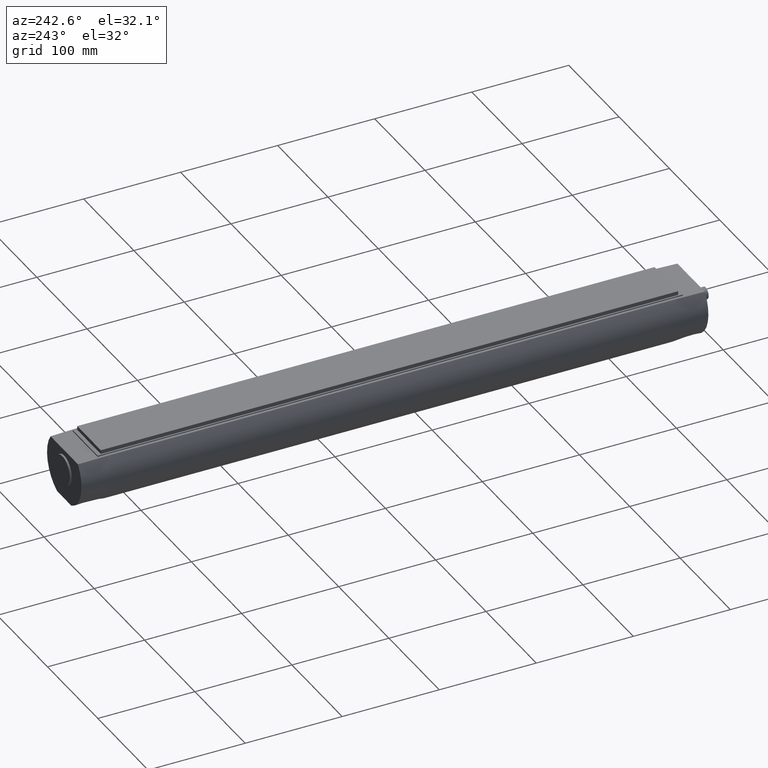
[diagram: clean part render]
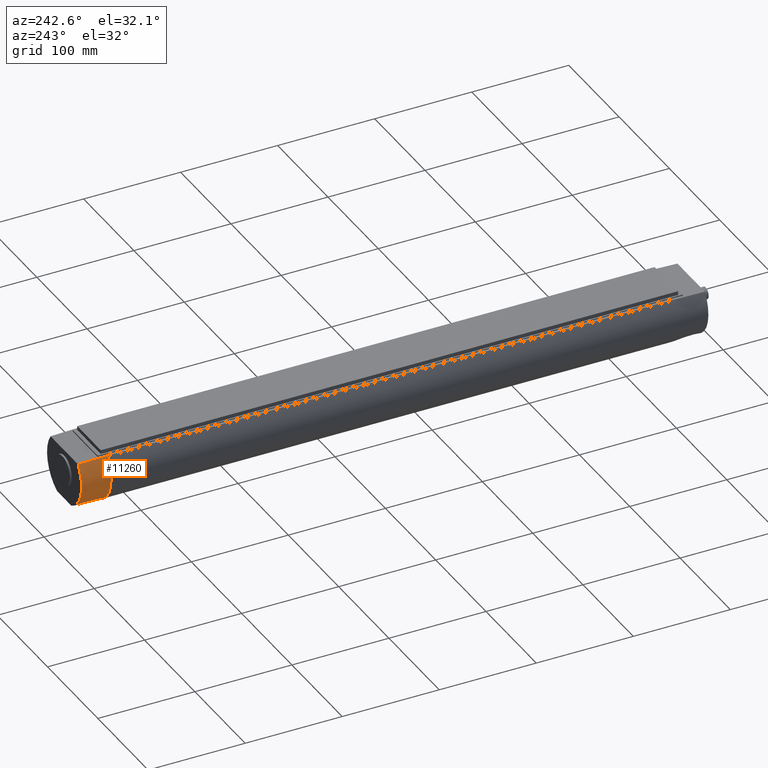
[diagram: same view with one face highlighted and labeled with its STEP entity id]
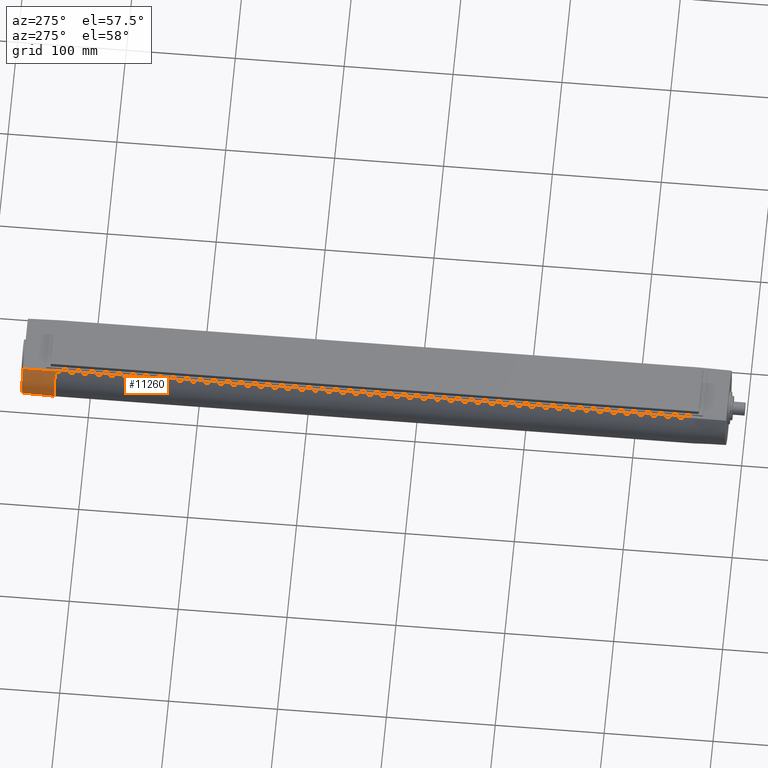
[diagram: same view with one face highlighted and labeled with its STEP entity id]
A machine part, auxiliary view. The second image highlights one B-rep face of the part: STEP entity #11260.
A second angle (auxiliary view) of the same face is appended — the face is thin or edge-on in the first view.
In plain terms, the highlighted conical surface has half-angle 1.4 deg.
Its self-contained STEP definition (entity closure, byte-faithful):
#9130=CARTESIAN_POINT('',(27.6179289592829,21.5,618.));
#9140=VERTEX_POINT('',#9130);
#9170=CARTESIAN_POINT('',(27.2571830238552,20.7668157924422,648.));
#9180=CARTESIAN_POINT('',(27.3782272919301,21.0112102938425,
638.000009593179));
#9190=CARTESIAN_POINT('',(27.4984655468682,21.2556050342733,
628.000009405855));
#9200=CARTESIAN_POINT('',(27.6179289592834,21.5000000000004,
617.999999999985));
#9210=B_SPLINE_CURVE_WITH_KNOTS('',3,(#9170,#9180,#9190,#9200),
.UNSPECIFIED.,.F.,.F.,(4,4),(0.,30.0111262778115),.UNSPECIFIED.);
#9220=CARTESIAN_POINT('',(27.2571830238552,20.7668157924422,648.));
#9230=VERTEX_POINT('',#9220);
#9240=EDGE_CURVE('',#9230,#9140,#9210,.T.);
#9750=CARTESIAN_POINT('',(2.15858374567904E-13,2.43244815377254E-13,
648.000000000002));
#9760=DIRECTION('',(-1.42685690847713E-14,-1.6063521642858E-14,1.));
#9770=DIRECTION('',(0.,-1.,-1.6063521642858E-14));
#9780=AXIS2_PLACEMENT_3D('',#9750,#9760,#9770);
#9790=CIRCLE('',#9780,34.266815792442);
#9800=CARTESIAN_POINT('',(14.0214441037524,-31.2668157924422,648.));
#9810=VERTEX_POINT('',#9800);
#9820=EDGE_CURVE('',#9810,#9230,#9790,.T.);
#10770=CARTESIAN_POINT('',(1.01739562552439E-7,4.55891902007011E-8,
617.999997016549));
#10780=DIRECTION('',(-6.72623952023016E-8,-5.23629372321532E-8,
0.999999999999996));
#10790=DIRECTION('',(0.999999999999998,0.,6.72623952023017E-8));
#10800=AXIS2_PLACEMENT_3D('',#10770,#10780,#10790);
#10810=CIRCLE('',#10800,34.9999998917143);
#10820=CARTESIAN_POINT('',(14.1774466102718,-32.,617.999996294544));
#10830=VERTEX_POINT('',#10820);
#10840=EDGE_CURVE('',#10830,#9140,#10810,.T.);
#11090=CARTESIAN_POINT('',(6.51047654798699E-13,7.33179887366235E-13,
617.500145554522));
#11100=DIRECTION('',(1.42685690847713E-14,1.6063521642858E-14,-1.));
#11110=DIRECTION('',(0.,-1.,-1.6063521642858E-14));
#11120=AXIS2_PLACEMENT_3D('',#11090,#11100,#11110);
#11130=CONICAL_SURFACE('',#11120,35.0122161795163,0.0244346095279108);
#11140=CARTESIAN_POINT('',(14.0214441037524,-31.2668157924422,648.));
#11150=CARTESIAN_POINT('',(14.0737343087345,-31.511210521219,
638.000000289521));
#11160=CARTESIAN_POINT('',(14.1257317696824,-31.7556051981429,
627.999998995276));
#11170=CARTESIAN_POINT('',(14.1774466102718,-32.,617.999996294544));
#11180=B_SPLINE_CURVE_WITH_KNOTS('',3,(#11140,#11150,#11160,#11170),
.UNSPECIFIED.,.F.,.F.,(4,4),(0.,30.0093671824027),.UNSPECIFIED.);
#11190=EDGE_CURVE('',#9810,#10830,#11180,.T.);
#11200=ORIENTED_EDGE('',*,*,#11190,.T.);
#11210=ORIENTED_EDGE('',*,*,#9820,.F.);
#11220=ORIENTED_EDGE('',*,*,#9240,.F.);
#11230=ORIENTED_EDGE('',*,*,#10840,.T.);
#11240=EDGE_LOOP('',(#11230,#11220,#11210,#11200));
#11250=FACE_OUTER_BOUND('',#11240,.T.);
#11260=ADVANCED_FACE('',(#11250),#11130,.T.);